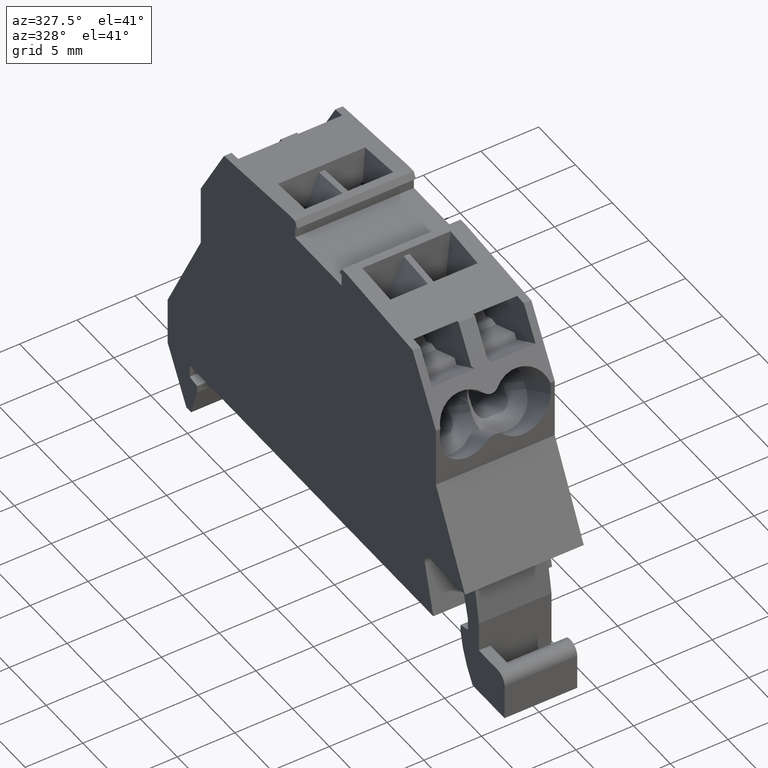
[diagram: clean part render]
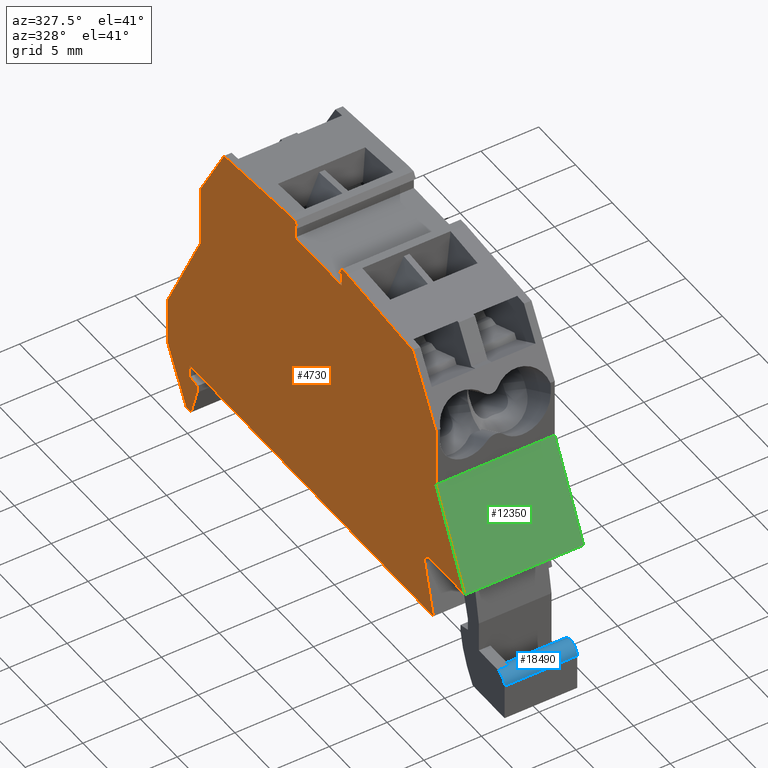
[diagram: same view with three faces highlighted in distinct colors, each labeled with its STEP entity id]
A machine part, auxiliary view with three faces highlighted in distinct colors.
Their STEP definitions:

[orange] entity #4730 — the highlighted planar face has unit normal (-1, 0, -0).
#2410=CARTESIAN_POINT('',(65.6923214715733,117.669163193412,9.9));
#2420=DIRECTION('',(-1.67982988908206E-18,-3.44715267975762E-18,1.));
#2430=DIRECTION('',(0.50000000000142,0.866025403783619,
3.82523673593429E-18));
#2440=AXIS2_PLACEMENT_3D('',#2410,#2420,#2430);
#2450=PLANE('',#2440);
#2460=CARTESIAN_POINT('',(79.6226566744946,97.9573628459405,
9.89999999999999));
#2470=DIRECTION('',(-0.866025403784273,0.500000000000287,
-5.44332648143563E-17));
#2480=VECTOR('',#2470,1.);
#2490=LINE('',#2460,#2480);
#2500=CARTESIAN_POINT('',(66.4363213229951,105.570497110759,
9.89999999999999));
#2510=VERTEX_POINT('',#2500);
#2520=CARTESIAN_POINT('',(61.903566359926,108.187484408866,
9.89999999999999));
#2530=VERTEX_POINT('',#2520);
#2540=EDGE_CURVE('',#2510,#2530,#2490,.T.);
#2550=ORIENTED_EDGE('',*,*,#2540,.F.);
#2560=CARTESIAN_POINT('',(56.3976883572584,117.723944849772,
9.89999999999999));
#2570=DIRECTION('',(0.499999999999624,-0.866025403784656,
1.66533453693773E-16));
#2580=VECTOR('',#2570,1.);
#2590=LINE('',#2560,#2580);
#2600=CARTESIAN_POINT('',(58.737123185989,113.671924865398,9.9));
#2610=VERTEX_POINT('',#2600);
#2620=EDGE_CURVE('',#2610,#2530,#2590,.T.);
#2630=ORIENTED_EDGE('',*,*,#2620,.T.);
#2640=CARTESIAN_POINT('',(60.6266111357032,117.723944849772,9.9));
#2650=DIRECTION('',(0.422618261741383,0.906307787036331,
8.67501447031967E-49));
#2660=VECTOR('',#2650,1.);
#2670=LINE('',#2640,#2660);
#2680=CARTESIAN_POINT('',(62.5270291794987,121.799404496544,9.9));
#2690=VERTEX_POINT('',#2680);
#2700=EDGE_CURVE('',#2610,#2690,#2670,.T.);
#2710=ORIENTED_EDGE('',*,*,#2700,.F.);
#2720=CARTESIAN_POINT('',(60.17406145536,117.723944849772,9.9));
#2730=DIRECTION('',(0.500000000000653,0.866025403784062,
-2.77555756156289E-17));
#2740=VECTOR('',#2730,1.);
#2750=LINE('',#2720,#2740);
#2760=CARTESIAN_POINT('',(62.8789351687302,122.408923549378,9.9));
#2770=VERTEX_POINT('',#2760);
#2780=EDGE_CURVE('',#2690,#2770,#2750,.T.);
#2790=ORIENTED_EDGE('',*,*,#2780,.F.);
#2800=CARTESIAN_POINT('',(79.6226566744881,122.408923549251,
9.89999999999999));
#2810=DIRECTION('',(-1.,7.58376694776075E-12,-4.71405901404298E-17));
#2820=VECTOR('',#2810,1.);
#2830=LINE('',#2800,#2820);
#2840=CARTESIAN_POINT('',(63.4909264540725,122.408923549374,
9.89999999999999));
#2850=VERTEX_POINT('',#2840);
#2860=EDGE_CURVE('',#2850,#2770,#2830,.T.);
#2870=ORIENTED_EDGE('',*,*,#2860,.T.);
#2880=CARTESIAN_POINT('',(60.7860527407033,117.723944849772,
9.89999999999999));
#2890=DIRECTION('',(0.500000000000923,0.866025403783906,
1.88553163787377E-28));
#2900=VECTOR('',#2890,1.);
#2910=LINE('',#2880,#2900);
#2920=CARTESIAN_POINT('',(63.3547726435062,122.173098231829,
9.90000000000003));
#2930=VERTEX_POINT('',#2920);
#2940=EDGE_CURVE('',#2930,#2850,#2910,.T.);
#2950=ORIENTED_EDGE('',*,*,#2940,.T.);
#2960=CARTESIAN_POINT('',(79.6226566744921,112.780831007381,
9.90000000000003));
#2970=DIRECTION('',(-0.866025403784152,0.500000000000496,
5.55111512312578E-17));
#2980=VECTOR('',#2970,1.);
#2990=LINE('',#2960,#2980);
#3000=CARTESIAN_POINT('',(64.281419825555,121.638098231828,
9.90000000000003));
#3010=VERTEX_POINT('',#3000);
#3020=EDGE_CURVE('',#3010,#2930,#2990,.T.);
#3030=ORIENTED_EDGE('',*,*,#3020,.T.);
#3040=CARTESIAN_POINT('',(62.0215823167742,117.723944849772,
9.89999999999999));
#3050=DIRECTION('',(-0.500000000000234,-0.866025403784304,
-1.45258258637552E-28));
#3060=VECTOR('',#3050,1.);
#3070=LINE('',#3040,#3060);
#3080=CARTESIAN_POINT('',(67.4439198255586,127.115708910768,
9.90000000000003));
#3090=VERTEX_POINT('',#3080);
#3100=EDGE_CURVE('',#3090,#3010,#3070,.T.);
#3110=ORIENTED_EDGE('',*,*,#3100,.T.);
#3120=CARTESIAN_POINT('',(79.6226566744921,120.084311912645,
9.90000000000003));
#3130=DIRECTION('',(-0.866025403784394,0.500000000000078,
-8.32667268468868E-17));
#3140=VECTOR('',#3130,1.);
#3150=LINE('',#3120,#3140);
#3160=CARTESIAN_POINT('',(66.5172726435097,127.650708910768,
9.90000000000003));
#3170=VERTEX_POINT('',#3160);
#3180=EDGE_CURVE('',#3090,#3170,#3150,.T.);
#3190=ORIENTED_EDGE('',*,*,#3180,.F.);
#3200=CARTESIAN_POINT('',(60.7860527407174,117.723944849772,
9.89999999999999));
#3210=DIRECTION('',(0.499999999999651,0.866025403784641,
1.08576226544775E-28));
#3220=VECTOR('',#3210,1.);
#3230=LINE('',#3200,#3220);
#3240=CARTESIAN_POINT('',(66.3811188329435,127.414883593223,
9.89999999999999));
#3250=VERTEX_POINT('',#3240);
#3260=EDGE_CURVE('',#3250,#3170,#3230,.T.);
#3270=ORIENTED_EDGE('',*,*,#3260,.T.);
#3280=CARTESIAN_POINT('',(71.9761849252626,117.723944849775,
9.89999999999999));
#3290=DIRECTION('',(0.500000000005994,-0.866025403780978,
4.71405901402813E-17));
#3300=VECTOR('',#3290,1.);
#3310=LINE('',#3280,#3300);
#3320=CARTESIAN_POINT('',(66.0751231902687,127.944883593222,9.9));
#3330=VERTEX_POINT('',#3320);
#3340=EDGE_CURVE('',#3330,#3250,#3310,.T.);
#3350=ORIENTED_EDGE('',*,*,#3340,.T.);
#3360=CARTESIAN_POINT('',(60.1740614553684,117.723944849772,9.9));
#3370=DIRECTION('',(-0.499999999999921,-0.866025403784484,
5.55111512312578E-17));
#3380=VECTOR('',#3370,1.);
#3390=LINE('',#3360,#3380);
#3400=CARTESIAN_POINT('',(66.4270291794981,128.554402646055,
9.89999999999999));
#3410=VERTEX_POINT('',#3400);
#3420=EDGE_CURVE('',#3410,#3330,#3390,.T.);
#3430=ORIENTED_EDGE('',*,*,#3420,.T.);
#3440=CARTESIAN_POINT('',(58.843460988277,117.723944849772,9.9));
#3450=DIRECTION('',(-0.573576436351071,-0.819152044288975,
-1.17737077065184E-48));
#3460=VECTOR('',#3450,1.);
#3470=LINE('',#3440,#3460);
#3480=CARTESIAN_POINT('',(71.5706800120637,135.900297329961,
9.89999999999999));
#3490=VERTEX_POINT('',#3480);
#3500=EDGE_CURVE('',#3490,#3410,#3470,.T.);
#3510=ORIENTED_EDGE('',*,*,#3500,.T.);
#3520=CARTESIAN_POINT('',(79.6226566744921,135.900297329964,9.9));
#3530=DIRECTION('',(1.,4.34152713779667E-13,1.55628921478194E-16));
#3540=VECTOR('',#3530,1.);
#3550=LINE('',#3520,#3540);
#3560=CARTESIAN_POINT('',(77.9035663599323,135.900297329964,9.9));
#3570=VERTEX_POINT('',#3560);
#3580=EDGE_CURVE('',#3490,#3570,#3550,.T.);
#3590=ORIENTED_EDGE('',*,*,#3580,.F.);
#3600=CARTESIAN_POINT('',(79.6226566744847,134.907780074089,
9.89999999999999));
#3610=DIRECTION('',(-0.866025403784273,0.500000000000287,
-5.44332648143562E-17));
#3620=VECTOR('',#3610,1.);
#3630=LINE('',#3600,#3620);
#3640=CARTESIAN_POINT('',(82.4363213230552,133.283310031826,
9.89999999999999));
#3650=VERTEX_POINT('',#3640);
#3660=EDGE_CURVE('',#3650,#3570,#3630,.T.);
#3670=ORIENTED_EDGE('',*,*,#3660,.T.);
#3680=CARTESIAN_POINT('',(-2.98427949019242E-13,137.603614564728,
9.89999999999999));
#3690=DIRECTION('',(-0.998629534754513,0.0523359562441171,
-2.55147199032421E-29));
#3700=VECTOR('',#3690,1.);
#3710=LINE('',#3680,#3700);
#3720=CARTESIAN_POINT('',(91.125425338593,132.827933386403,
9.89999999999999));
#3730=VERTEX_POINT('',#3720);
#3740=EDGE_CURVE('',#3730,#3650,#3710,.T.);
#3750=ORIENTED_EDGE('',*,*,#3740,.T.);
#3760=CARTESIAN_POINT('',(14.4371822420515,-5.54223333892878E-13,
9.89999999999999));
#3770=DIRECTION('',(0.5,0.866025403784439,-3.80409682615367E-29));
#3780=VECTOR('',#3770,1.);
#3790=LINE('',#3760,#3780);
#3800=CARTESIAN_POINT('',(88.7908518453532,128.784333482108,
9.89999999999999));
#3810=VERTEX_POINT('',#3800);
#3820=EDGE_CURVE('',#3810,#3730,#3790,.T.);
#3830=ORIENTED_EDGE('',*,*,#3820,.T.);
#3840=CARTESIAN_POINT('',(89.406423004571,128.355880278199,
9.89999999999999));
#3850=DIRECTION('',(-4.71405901402872E-17,2.72166324069553E-17,1.));
#3860=DIRECTION('',(0.500000000000371,0.866025403784225,
1.63137051497287E-28));
#3870=AXIS2_PLACEMENT_3D('',#3840,#3850,#3860);
#3880=CIRCLE('',#3870,0.75);
#3890=CARTESIAN_POINT('',(89.2123087207439,127.631435908483,
9.89999999999999));
#3900=VERTEX_POINT('',#3890);
#3910=EDGE_CURVE('',#3810,#3900,#3880,.T.);
#3920=ORIENTED_EDGE('',*,*,#3910,.F.);
#3930=CARTESIAN_POINT('',(-2.8421709430404E-13,151.535801985142,
9.89999999999998));
#3940=DIRECTION('',(-0.965925826289016,0.258819045102719,
-3.6521794721404E-29));
#3950=VECTOR('',#3940,1.);
#3960=LINE('',#3930,#3950);
#3970=CARTESIAN_POINT('',(93.518194436917,126.477677308132,
9.89999999999998));
#3980=VERTEX_POINT('',#3970);
#3990=EDGE_CURVE('',#3980,#3900,#3960,.T.);
#4000=ORIENTED_EDGE('',*,*,#3990,.T.);
#4010=CARTESIAN_POINT('',(20.4962733965533,-5.54223333892878E-13,
9.89999999999998));
#4020=DIRECTION('',(0.500000000000177,0.866025403784337,
-3.80409682615367E-29));
#4030=VECTOR('',#4020,1.);
#4040=LINE('',#4010,#4030);
#4050=CARTESIAN_POINT('',(76.9446515722186,97.7714590050678,
9.89999999999998));
#4060=VERTEX_POINT('',#4050);
#4070=EDGE_CURVE('',#4060,#3980,#4040,.T.);
#4080=ORIENTED_EDGE('',*,*,#4070,.T.);
#4090=CARTESIAN_POINT('',(-2.98427949019242E-13,142.195474303011,
9.89999999999999));
#4100=DIRECTION('',(-0.866025403784337,0.500000000000177,
-4.80157446295071E-29));
#4110=VECTOR('',#4100,1.);
#4120=LINE('',#4090,#4110);
#4130=CARTESIAN_POINT('',(77.8972795163813,97.2214590050677,
9.89999999999998));
#4140=VERTEX_POINT('',#4130);
#4150=EDGE_CURVE('',#4140,#4060,#4120,.T.);
#4160=ORIENTED_EDGE('',*,*,#4150,.T.);
#4170=CARTESIAN_POINT('',(-3.68121087732607,-5.54223333892878E-13,
9.89999999999999));
#4180=DIRECTION('',(-0.642787609686713,-0.766044443118832,
2.91323867107791E-29));
#4190=VECTOR('',#4180,1.);
#4200=LINE('',#4170,#4190);
#4210=CARTESIAN_POINT('',(78.5499831610476,97.9993209184977,
9.89999999999998));
#4220=VERTEX_POINT('',#4210);
#4230=EDGE_CURVE('',#4220,#4140,#4200,.T.);
#4240=ORIENTED_EDGE('',*,*,#4230,.T.);
#4250=CARTESIAN_POINT('',(-2.8421709430404E-13,143.350174841392,
9.89999999999998));
#4260=DIRECTION('',(-0.866025403784331,0.500000000000187,
-4.80157446295071E-29));
#4270=VECTOR('',#4260,1.);
#4280=LINE('',#4250,#4270);
#4290=CARTESIAN_POINT('',(79.090099839409,97.6874844088518,
9.89999999999998));
#4300=VERTEX_POINT('',#4290);
#4310=EDGE_CURVE('',#4300,#4220,#4280,.T.);
#4320=ORIENTED_EDGE('',*,*,#4310,.T.);
#4330=CARTESIAN_POINT('',(167.048305878378,-5.6843418860808E-13,
9.89999999999999));
#4340=DIRECTION('',(-0.669130606358673,0.743144825477562,
-5.74142827581168E-29));
#4350=VECTOR('',#4340,1.);
#4360=LINE('',#4330,#4350);
#4370=CARTESIAN_POINT('',(80.8490137285794,95.7340126310314,
9.89999999999999));
#4380=VERTEX_POINT('',#4370);
#4390=EDGE_CURVE('',#4380,#4300,#4360,.T.);
#4400=ORIENTED_EDGE('',*,*,#4390,.T.);
#4410=CARTESIAN_POINT('',(93.5449070145397,117.723944849781,
9.89999999999999));
#4420=DIRECTION('',(-0.50000000000009,-0.866025403784387,
-1.36220254594531E-28));
#4430=VECTOR('',#4420,1.);
#4440=LINE('',#4410,#4430);
#4450=CARTESIAN_POINT('',(80.5253339410894,95.1733827937144,
9.89999999999999));
#4460=VERTEX_POINT('',#4450);
#4470=EDGE_CURVE('',#4380,#4460,#4440,.T.);
#4480=ORIENTED_EDGE('',*,*,#4470,.F.);
#4490=CARTESIAN_POINT('',(79.6226566744953,95.1733827937145,
9.89999999999999));
#4500=DIRECTION('',(-1.,1.03639319348648E-13,-4.71405901402262E-17));
#4510=VECTOR('',#4500,1.);
#4520=LINE('',#4490,#4510);
#4530=CARTESIAN_POINT('',(75.44465157222,95.1733827937137,
9.89999999999999));
#4540=VERTEX_POINT('',#4530);
#4550=EDGE_CURVE('',#4460,#4540,#4520,.T.);
#4560=ORIENTED_EDGE('',*,*,#4550,.F.);
#4570=CARTESIAN_POINT('',(-2.98427949019242E-13,138.731372687873,
9.89999999999999));
#4580=DIRECTION('',(0.866025403784337,-0.500000000000177,
4.80157446295071E-29));
#4590=VECTOR('',#4580,1.);
#4600=LINE('',#4570,#4590);
#4610=CARTESIAN_POINT('',(71.8348388227303,97.2575091563566,
9.89999999999999));
#4620=VERTEX_POINT('',#4610);
#4630=EDGE_CURVE('',#4620,#4540,#4600,.T.);
#4640=ORIENTED_EDGE('',*,*,#4630,.T.);
#4650=CARTESIAN_POINT('',(134.994603764191,-5.54223333892878E-13,
9.89999999999998));
#4660=DIRECTION('',(0.544639035014093,-0.838670567946031,
6.00397104583054E-29));
#4670=VECTOR('',#4660,1.);
#4680=LINE('',#4650,#4670);
#4690=EDGE_CURVE('',#2510,#4620,#4680,.T.);
#4700=ORIENTED_EDGE('',*,*,#4690,.T.);
#4710=EDGE_LOOP('',(#4700,#4640,#4560,#4480,#4400,#4320,#4240,#4160,
#4080,#4000,#3920,#3830,#3750,#3670,#3590,#3510,#3430,#3350,#3270,#3190,
#3110,#3030,#2950,#2870,#2790,#2710,#2630,#2550));
#4720=FACE_OUTER_BOUND('',#4710,.T.);
#4730=ADVANCED_FACE('',(#4720),#2450,.T.);

[blue] entity #18490 — the highlighted cylindrical surface (edge-blend (fillet) strip) has radius 0.9 mm, axis along (1, -0, 0).
#6350=CARTESIAN_POINT('',(98.0767023797947,130.373244671901,
6.9000000000042));
#6360=VERTEX_POINT('',#6350);
#6590=CARTESIAN_POINT('',(99.1370727451301,129.068219233006,
6.90000000000391));
#6600=VERTEX_POINT('',#6590);
#6630=CARTESIAN_POINT('',(98.8561252431991,129.923244671902,
6.90000000000421));
#6640=DIRECTION('',(2.63236506946303E-13,4.36512257279627E-13,-1.));
#6650=DIRECTION('',(-0.500000000000091,-0.866025403784387,
-5.09648957340597E-13));
#6660=AXIS2_PLACEMENT_3D('',#6630,#6640,#6650);
#6670=CIRCLE('',#6660,0.900000000000114);
#6680=EDGE_CURVE('',#6600,#6360,#6670,.T.);
#6850=CARTESIAN_POINT('',(99.1370727451315,129.068219233008,
1.60000000000391));
#6860=DIRECTION('',(-2.63236506946303E-13,-4.36512257279627E-13,1.));
#6870=VECTOR('',#6860,1.);
#6880=LINE('',#6850,#6870);
#6890=CARTESIAN_POINT('',(99.1370727451315,129.068219233008,
1.60000000000391));
#6900=VERTEX_POINT('',#6890);
#6910=EDGE_CURVE('',#6900,#6600,#6880,.T.);
#7890=CARTESIAN_POINT('',(98.076702379796,130.373244671903,
7.9000000000042));
#7900=VERTEX_POINT('',#7890);
#7930=CARTESIAN_POINT('',(98.8561252432018,129.923244671902,
7.90000000000421));
#7940=DIRECTION('',(4.71405901402872E-17,-2.72166324069553E-17,-1.));
#7950=DIRECTION('',(-0.500000000000177,-0.866025403784337,
-1.78785237223483E-28));
#7960=AXIS2_PLACEMENT_3D('',#7930,#7940,#7950);
#7970=CIRCLE('',#7960,0.900000000000114);
#7980=CARTESIAN_POINT('',(99.3061252432018,130.702667535308,
7.90000000000467));
#7990=VERTEX_POINT('',#7980);
#8000=EDGE_CURVE('',#7900,#7990,#7970,.T.);
#8810=CARTESIAN_POINT('',(98.8561252432018,129.923244671902,
1.60000000000421));
#8820=DIRECTION('',(4.71405901402872E-17,-2.72166324069553E-17,-1.));
#8830=DIRECTION('',(-0.500000000000177,-0.866025403784337,
-1.78785237223483E-28));
#8840=AXIS2_PLACEMENT_3D('',#8810,#8820,#8830);
#8850=CIRCLE('',#8840,0.900000000000114);
#8860=CARTESIAN_POINT('',(99.3061252432018,130.702667535308,
1.60000000000467));
#8870=VERTEX_POINT('',#8860);
#8880=EDGE_CURVE('',#6900,#8870,#8850,.T.);
#18120=CARTESIAN_POINT('',(99.3061252432018,130.702667535308,
-0.400000000000007));
#18130=DIRECTION('',(-4.71405901402825E-17,2.72166324069634E-17,1.));
#18140=VECTOR('',#18130,1.);
#18150=LINE('',#18120,#18140);
#18160=EDGE_CURVE('',#8870,#7990,#18150,.T.);
#18310=CARTESIAN_POINT('',(98.8561252432018,129.923244671902,
-0.400000000000007));
#18320=DIRECTION('',(4.71405901402872E-17,-2.72166324069553E-17,-1.));
#18330=DIRECTION('',(-0.500000000000177,-0.866025403784337,
-1.50981898055093E-28));
#18340=AXIS2_PLACEMENT_3D('',#18310,#18320,#18330);
#18350=CYLINDRICAL_SURFACE('',#18340,0.900000000000114);
#18360=CARTESIAN_POINT('',(98.076702379796,130.373244671903,
-0.400000000000007));
#18370=DIRECTION('',(-4.71405901402825E-17,2.72166324069634E-17,1.));
#18380=VECTOR('',#18370,1.);
#18390=LINE('',#18360,#18380);
#18400=EDGE_CURVE('',#6360,#7900,#18390,.T.);
#18410=ORIENTED_EDGE('',*,*,#18400,.T.);
#18420=ORIENTED_EDGE('',*,*,#6680,.T.);
#18430=ORIENTED_EDGE('',*,*,#6910,.T.);
#18440=ORIENTED_EDGE('',*,*,#8880,.F.);
#18450=ORIENTED_EDGE('',*,*,#18160,.F.);
#18460=ORIENTED_EDGE('',*,*,#8000,.T.);
#18470=EDGE_LOOP('',(#18460,#18450,#18440,#18430,#18420,#18410));
#18480=FACE_OUTER_BOUND('',#18470,.T.);
#18490=ADVANCED_FACE('',(#18480),#18350,.T.);

[green] entity #12350 — the highlighted planar face has unit normal (0, 0.891, -0.454).
#1010=CARTESIAN_POINT('',(91.125425338593,132.827933386403,
-0.400000000000007));
#1020=VERTEX_POINT('',#1010);
#1050=CARTESIAN_POINT('',(167.215997517429,128.840195474044,
-0.400000000000004));
#1060=DIRECTION('',(-0.998629534754513,0.0523359562441171,
-4.85003940825416E-17));
#1070=VECTOR('',#1060,1.);
#1080=LINE('',#1050,#1070);
#1090=CARTESIAN_POINT('',(82.4363213230552,133.283310031826,
-0.400000000000008));
#1100=VERTEX_POINT('',#1090);
#1110=EDGE_CURVE('',#1020,#1100,#1080,.T.);
#3640=CARTESIAN_POINT('',(82.4363213230552,133.283310031826,
9.89999999999999));
#3650=VERTEX_POINT('',#3640);
#3680=CARTESIAN_POINT('',(-2.98427949019242E-13,137.603614564728,
9.89999999999999));
#3690=DIRECTION('',(-0.998629534754513,0.0523359562441171,
-2.55147199032421E-29));
#3700=VECTOR('',#3690,1.);
#3710=LINE('',#3680,#3700);
#3720=CARTESIAN_POINT('',(91.125425338593,132.827933386403,
9.89999999999999));
#3730=VERTEX_POINT('',#3720);
#3740=EDGE_CURVE('',#3730,#3650,#3710,.T.);
#5840=CARTESIAN_POINT('',(91.125425338593,132.827933386403,
-1.12132525487141E-14));
#5850=DIRECTION('',(-4.71405901402825E-17,2.72166324069634E-17,1.));
#5860=VECTOR('',#5850,1.);
#5870=LINE('',#5840,#5860);
#5880=EDGE_CURVE('',#1020,#3730,#5870,.T.);
#12190=CARTESIAN_POINT('',(91.125425338593,132.827933386403,
-0.400000000000007));
#12200=DIRECTION('',(-0.0523359562441171,-0.998629534754512,
2.47121850952467E-17));
#12210=DIRECTION('',(0.998629534754513,-0.0523359562441171,
4.85003940825416E-17));
#12220=AXIS2_PLACEMENT_3D('',#12190,#12200,#12210);
#12230=PLANE('',#12220);
#12240=ORIENTED_EDGE('',*,*,#1110,.T.);
#12250=ORIENTED_EDGE('',*,*,#5880,.F.);
#12260=ORIENTED_EDGE('',*,*,#3740,.F.);
#12270=CARTESIAN_POINT('',(82.4363213230552,133.283310031826,
-0.100000000000009));
#12280=DIRECTION('',(5.55548507560932E-17,-2.76576051201567E-17,-1.));
#12290=VECTOR('',#12280,1.);
#12300=LINE('',#12270,#12290);
#12310=EDGE_CURVE('',#3650,#1100,#12300,.T.);
#12320=ORIENTED_EDGE('',*,*,#12310,.F.);
#12330=EDGE_LOOP('',(#12320,#12260,#12250,#12240));
#12340=FACE_OUTER_BOUND('',#12330,.T.);
#12350=ADVANCED_FACE('',(#12340),#12230,.F.);